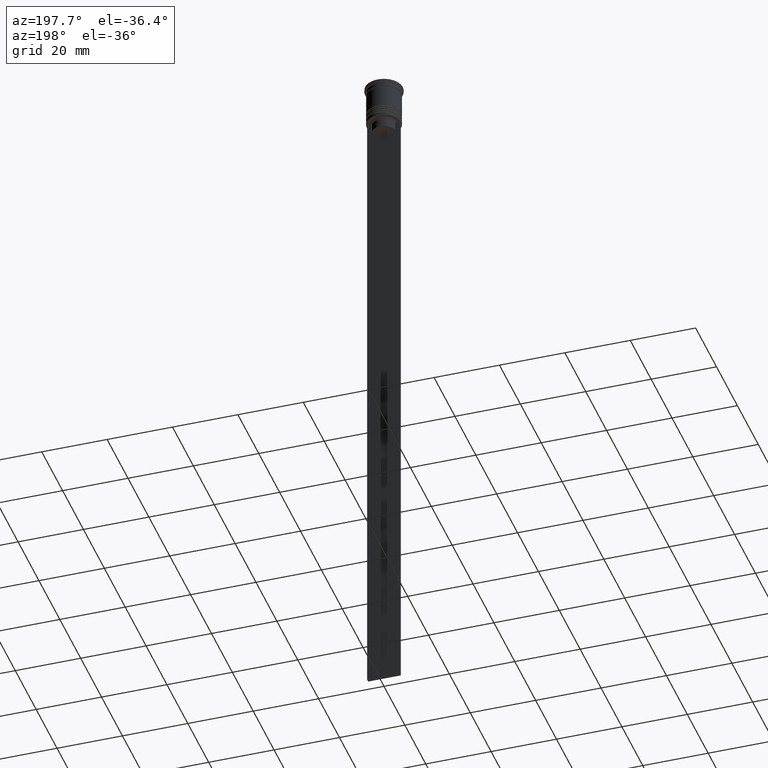
[diagram: clean part render]
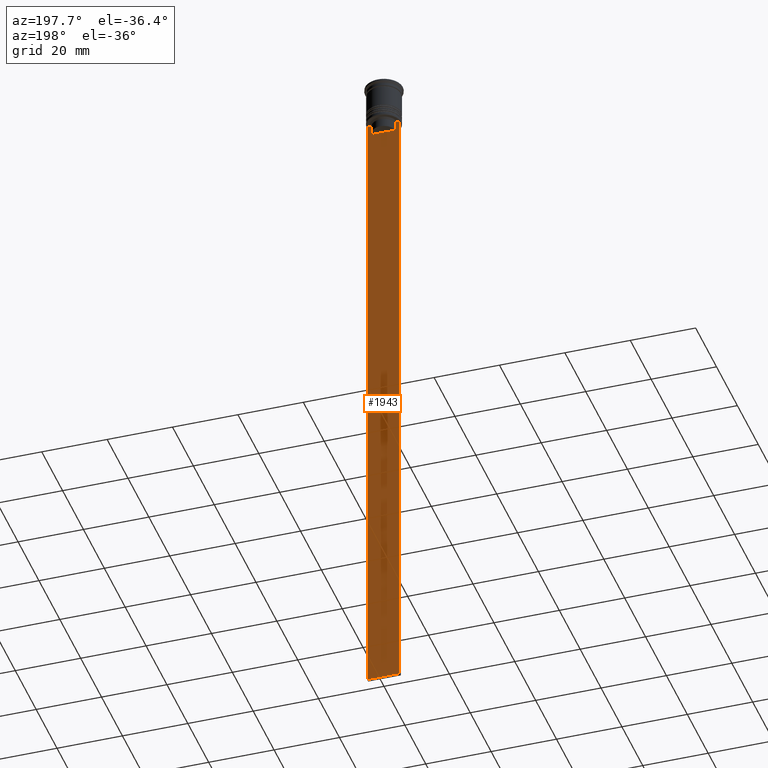
[diagram: same view with one face highlighted and labeled with its STEP entity id]
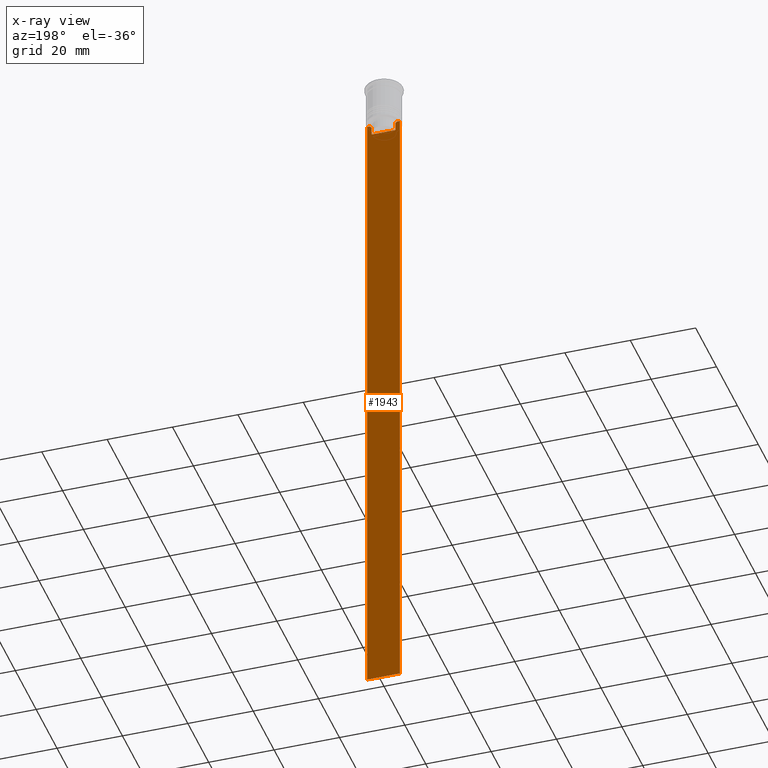
[diagram: x-ray of the same camera — body ghosted, the highlighted face saturated]
A machine part, auxiliary view. The second image highlights one B-rep face of the part: STEP entity #1943.
The next image is the same camera in x-ray: the body ghosted, the highlighted face saturated — about 0% of this face is hidden behind the body in this view.
In plain terms, the highlighted planar face has unit normal (0, -1, -0).
Its self-contained STEP definition (entity closure, byte-faithful):
#57 = ORIENTED_EDGE ( 'NONE', *, *, #491, .T. ) ;
#88 = DIRECTION ( 'NONE',  ( 0.000000000000000000, 0.000000000000000000, -1.000000000000000000 ) ) ;
#103 = LINE ( 'NONE', #829, #782 ) ;
#128 = DIRECTION ( 'NONE',  ( -1.000000000000000000, 0.000000000000000000, 0.000000000000000000 ) ) ;
#161 = ORIENTED_EDGE ( 'NONE', *, *, #2089, .T. ) ;
#173 = AXIS2_PLACEMENT_3D ( 'NONE', #2273, #2282, #1890 ) ;
#235 = EDGE_CURVE ( 'NONE', #2127, #1288, #1529, .T. ) ;
#237 = VERTEX_POINT ( 'NONE', #599 ) ;
#262 = LINE ( 'NONE', #2102, #2116 ) ;
#271 = PLANE ( 'NONE',  #173 ) ;
#287 = VECTOR ( 'NONE', #1866, 1000.000000000000000 ) ;
#299 = DIRECTION ( 'NONE',  ( 0.000000000000000000, 0.000000000000000000, -1.000000000000000000 ) ) ;
#326 = EDGE_CURVE ( 'NONE', #1448, #1603, #978, .T. ) ;
#368 = ORIENTED_EDGE ( 'NONE', *, *, #526, .T. ) ;
#430 = VECTOR ( 'NONE', #299, 1000.000000000000000 ) ;
#440 = VECTOR ( 'NONE', #2153, 1000.000000000000000 ) ;
#447 = DIRECTION ( 'NONE',  ( 0.000000000000000000, 0.000000000000000000, -1.000000000000000000 ) ) ;
#456 = ORIENTED_EDGE ( 'NONE', *, *, #235, .F. ) ;
#491 = EDGE_CURVE ( 'NONE', #2127, #928, #517, .T. ) ;
#507 = CARTESIAN_POINT ( 'NONE',  ( -4.119769411022908834, 0.4999999999999991673, -12.50000000000000000 ) ) ;
#517 = LINE ( 'NONE', #1981, #812 ) ;
#519 = ORIENTED_EDGE ( 'NONE', *, *, #1645, .T. ) ;
#524 = LINE ( 'NONE', #1756, #440 ) ;
#526 = EDGE_CURVE ( 'NONE', #237, #1448, #567, .T. ) ;
#567 = LINE ( 'NONE', #972, #287 ) ;
#581 = CARTESIAN_POINT ( 'NONE',  ( 5.000000000000000000, 0.4999999999999991673, -212.5000000000000284 ) ) ;
#599 = CARTESIAN_POINT ( 'NONE',  ( -3.615591237958188486, 0.4999999999999991673, -15.50000000000000000 ) ) ;
#614 = VERTEX_POINT ( 'NONE', #2057 ) ;
#621 = B_SPLINE_CURVE_WITH_KNOTS ( 'NONE', 3,
 ( #507, #1797, #1053, #1976 ),
 .UNSPECIFIED., .F., .F.,
 ( 4, 4 ),
 ( 0.007067514914986626831, 0.007777582239375527978 ),
 .UNSPECIFIED. ) ;
#681 = LINE ( 'NONE', #1427, #1928 ) ;
#758 = ORIENTED_EDGE ( 'NONE', *, *, #2121, .T. ) ;
#782 = VECTOR ( 'NONE', #88, 1000.000000000000000 ) ;
#789 = ORIENTED_EDGE ( 'NONE', *, *, #2013, .T. ) ;
#812 = VECTOR ( 'NONE', #2118, 1000.000000000000000 ) ;
#829 = CARTESIAN_POINT ( 'NONE',  ( -3.615591237958188042, 0.4999999999999991673, 0.000000000000000000 ) ) ;
#835 = CARTESIAN_POINT ( 'NONE',  ( -3.615591237958188042, 0.4999999999999991673, -13.00000000000000178 ) ) ;
#867 = CARTESIAN_POINT ( 'NONE',  ( 4.119769411022908834, 0.4999999999999991673, -12.50000000000000000 ) ) ;
#928 = VERTEX_POINT ( 'NONE', #1635 ) ;
#964 = B_SPLINE_CURVE_WITH_KNOTS ( 'NONE', 3,
 ( #1952, #1255, #1401, #867 ),
 .UNSPECIFIED., .F., .F.,
 ( 4, 4 ),
 ( 0.01745179617248911533, 0.01816207215777259493 ),
 .UNSPECIFIED. ) ;
#972 = CARTESIAN_POINT ( 'NONE',  ( 0.000000000000000000, 0.4999999999999991673, -15.50000000000000000 ) ) ;
#978 = LINE ( 'NONE', #1701, #1115 ) ;
#988 = DIRECTION ( 'NONE',  ( -0.000000000000000000, -0.000000000000000000, 1.000000000000000000 ) ) ;
#1053 = CARTESIAN_POINT ( 'NONE',  ( -3.783746449387932920, 0.4999999999999991673, -12.83342999751715752 ) ) ;
#1066 = CARTESIAN_POINT ( 'NONE',  ( -4.999999999999999112, 0.4999999999999991673, -212.5000000000000284 ) ) ;
#1115 = VECTOR ( 'NONE', #988, 1000.000000000000000 ) ;
#1228 = ORIENTED_EDGE ( 'NONE', *, *, #1297, .T. ) ;
#1243 = VERTEX_POINT ( 'NONE', #1788 ) ;
#1255 = CARTESIAN_POINT ( 'NONE',  ( 3.783746406711540722, 0.4999999999999991673, -12.83343003979123509 ) ) ;
#1288 = VERTEX_POINT ( 'NONE', #1066 ) ;
#1297 = EDGE_CURVE ( 'NONE', #928, #1625, #621, .T. ) ;
#1401 = CARTESIAN_POINT ( 'NONE',  ( 3.951794168112527927, 0.4999999999999991673, -12.66675163073525923 ) ) ;
#1427 = CARTESIAN_POINT ( 'NONE',  ( 5.000000000000000000, 0.4999999999999991673, -212.5000000000000284 ) ) ;
#1448 = VERTEX_POINT ( 'NONE', #2017 ) ;
#1529 = LINE ( 'NONE', #2072, #430 ) ;
#1540 = FACE_OUTER_BOUND ( 'NONE', #1792, .T. ) ;
#1603 = VERTEX_POINT ( 'NONE', #1935 ) ;
#1625 = VERTEX_POINT ( 'NONE', #835 ) ;
#1635 = CARTESIAN_POINT ( 'NONE',  ( -4.119769411022908834, 0.4999999999999991673, -12.50000000000000000 ) ) ;
#1645 = EDGE_CURVE ( 'NONE', #2242, #1288, #681, .T. ) ;
#1701 = CARTESIAN_POINT ( 'NONE',  ( 3.615591237958188042, 0.4999999999999991673, 0.000000000000000000 ) ) ;
#1734 = ORIENTED_EDGE ( 'NONE', *, *, #326, .T. ) ;
#1756 = CARTESIAN_POINT ( 'NONE',  ( 5.000000000000000000, 0.4999999999999991673, -12.50000000000000000 ) ) ;
#1788 = CARTESIAN_POINT ( 'NONE',  ( 4.119769411022908834, 0.4999999999999991673, -12.50000000000000000 ) ) ;
#1792 = EDGE_LOOP ( 'NONE', ( #57, #1228, #789, #368, #1734, #758, #161, #2010, #519, #456 ) ) ;
#1797 = CARTESIAN_POINT ( 'NONE',  ( -3.951794205566887985, 0.4999999999999991673, -12.66675159355373737 ) ) ;
#1866 = DIRECTION ( 'NONE',  ( 1.000000000000000000, 0.000000000000000000, 0.000000000000000000 ) ) ;
#1890 = DIRECTION ( 'NONE',  ( 0.000000000000000000, 0.000000000000000000, -1.000000000000000000 ) ) ;
#1928 = VECTOR ( 'NONE', #128, 1000.000000000000000 ) ;
#1935 = CARTESIAN_POINT ( 'NONE',  ( 3.615591237958188042, 0.4999999999999991673, -13.00000000000000178 ) ) ;
#1943 = ADVANCED_FACE ( 'NONE', ( #1540 ), #271, .F. ) ;
#1952 = CARTESIAN_POINT ( 'NONE',  ( 3.615591237958188042, 0.4999999999999991673, -13.00000000000000178 ) ) ;
#1976 = CARTESIAN_POINT ( 'NONE',  ( -3.615591237958188042, 0.4999999999999991673, -13.00000000000000178 ) ) ;
#1977 = EDGE_CURVE ( 'NONE', #614, #2242, #262, .T. ) ;
#1981 = CARTESIAN_POINT ( 'NONE',  ( 5.000000000000000000, 0.4999999999999991673, -12.50000000000000000 ) ) ;
#1989 = CARTESIAN_POINT ( 'NONE',  ( -4.999999999999999112, 0.4999999999999993339, -12.50000000000000000 ) ) ;
#2010 = ORIENTED_EDGE ( 'NONE', *, *, #1977, .T. ) ;
#2013 = EDGE_CURVE ( 'NONE', #1625, #237, #103, .T. ) ;
#2017 = CARTESIAN_POINT ( 'NONE',  ( 3.615591237958188486, 0.4999999999999991673, -15.50000000000000000 ) ) ;
#2057 = CARTESIAN_POINT ( 'NONE',  ( 5.000000000000000000, 0.4999999999999991673, -12.50000000000000000 ) ) ;
#2072 = CARTESIAN_POINT ( 'NONE',  ( -4.999999999999999112, 0.4999999999999991673, -2.450124378879110054 ) ) ;
#2089 = EDGE_CURVE ( 'NONE', #1243, #614, #524, .T. ) ;
#2102 = CARTESIAN_POINT ( 'NONE',  ( 5.000000000000000000, 0.4999999999999991673, -2.450124378879110054 ) ) ;
#2116 = VECTOR ( 'NONE', #447, 1000.000000000000000 ) ;
#2118 = DIRECTION ( 'NONE',  ( 1.000000000000000000, 0.000000000000000000, 0.000000000000000000 ) ) ;
#2121 = EDGE_CURVE ( 'NONE', #1603, #1243, #964, .T. ) ;
#2127 = VERTEX_POINT ( 'NONE', #1989 ) ;
#2153 = DIRECTION ( 'NONE',  ( 1.000000000000000000, 0.000000000000000000, 0.000000000000000000 ) ) ;
#2242 = VERTEX_POINT ( 'NONE', #581 ) ;
#2273 = CARTESIAN_POINT ( 'NONE',  ( 5.000000000000000000, 0.4999999999999991673, -2.450124378879110054 ) ) ;
#2282 = DIRECTION ( 'NONE',  ( 0.000000000000000000, -1.000000000000000000, -0.000000000000000000 ) ) ;